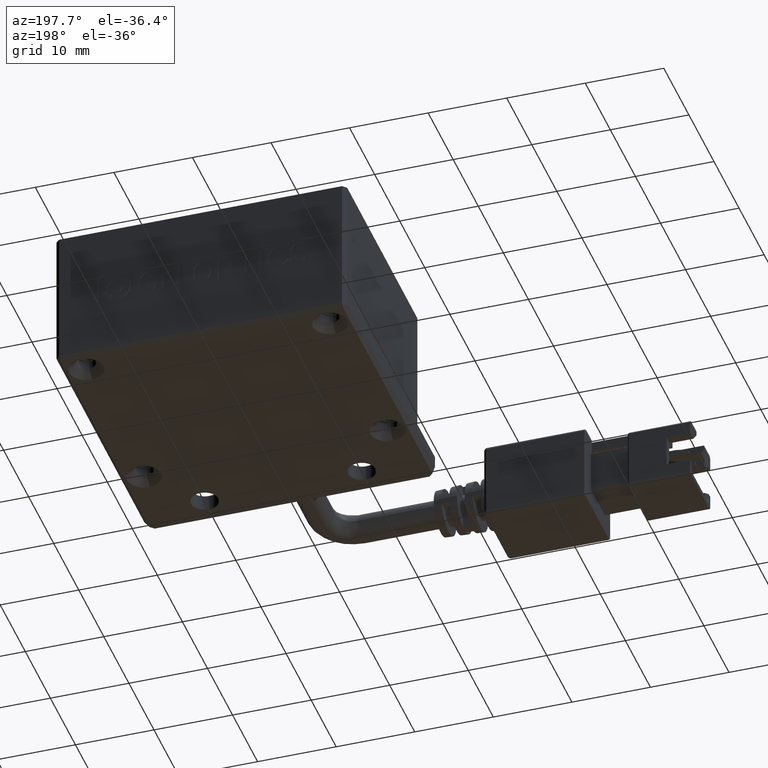
[diagram: clean part render]
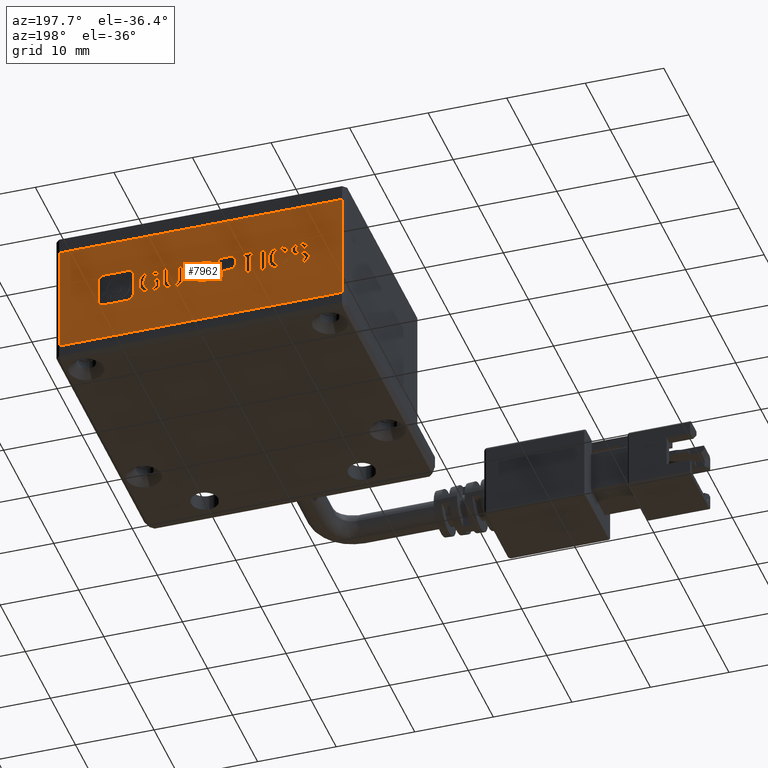
[diagram: same view with one face highlighted and labeled with its STEP entity id]
A machine part, auxiliary view. The second image highlights one B-rep face of the part: STEP entity #7962.
In plain terms, the highlighted planar face has unit normal (0, -1, 0).
Its self-contained STEP definition (entity closure, byte-faithful):
#54 = ORIENTED_EDGE ( 'NONE', *, *, #16119, .F. ) ;
#125 = VERTEX_POINT ( 'NONE', #10062 ) ;
#144 = DIRECTION ( 'NONE',  ( 1.000000000000000000, -0.0000000000000000000, -5.552676719606694400E-015 ) ) ;
#150 = DIRECTION ( 'NONE',  ( 7.322880387960603200E-015, -0.0000000000000000000, 1.000000000000000000 ) ) ;
#181 = VECTOR ( 'NONE', #12807, 1000.000000000000000 ) ;
#209 = LINE ( 'NONE', #10493, #3889 ) ;
#252 = CARTESIAN_POINT ( 'NONE',  ( -10.00140616549472000, 13.94635357006495000, 5.543769804141687600 ) ) ;
#275 = LINE ( 'NONE', #17168, #16345 ) ;
#327 = CARTESIAN_POINT ( 'NONE',  ( -8.760519199567319500, 13.94635357006495000, 7.064700036699803400 ) ) ;
#401 = CARTESIAN_POINT ( 'NONE',  ( -17.52940053455516500, 13.94635357006495000, 13.99999999998362900 ) ) ;
#438 = CARTESIAN_POINT ( 'NONE',  ( -7.146376419686406600, 13.94635357006495000, 5.599583757630047600 ) ) ;
#456 = CARTESIAN_POINT ( 'NONE',  ( -10.70013520822053700, 13.94635357006495000, 7.650746548327751000 ) ) ;
#481 = ORIENTED_EDGE ( 'NONE', *, *, #12413, .F. ) ;
#488 = EDGE_CURVE ( 'NONE', #7370, #8572, #5520, .T. ) ;
#500 = CARTESIAN_POINT ( 'NONE',  ( 12.69437896459454900, 13.94635357006495000, 9.395143773600935300 ) ) ;
#508 = EDGE_CURVE ( 'NONE', #11963, #7792, #5205, .T. ) ;
#518 = DIRECTION ( 'NONE',  ( 1.000000000000000000, -0.0000000000000000000, -1.134094831461895900E-014 ) ) ;
#543 = VECTOR ( 'NONE', #1288, 1000.000000000000000 ) ;
#608 = DIRECTION ( 'NONE',  ( -1.000000000000000000, -0.0000000000000000000, -0.0000000000000000000 ) ) ;
#665 = B_SPLINE_CURVE_WITH_KNOTS ( 'NONE', 3,
 ( #11896, #10332, #13176, #3863 ),
 .UNSPECIFIED., .F., .F.,
 ( 4, 4 ),
 ( 8.000000000000000000, 9.000000000000000000 ),
 .UNSPECIFIED. ) ;
#670 = VERTEX_POINT ( 'NONE', #9374 ) ;
#722 = CARTESIAN_POINT ( 'NONE',  ( 0.0000000000000000000, 13.94635357006495000, 5.543769804141618400 ) ) ;
#809 = LINE ( 'NONE', #4056, #4460 ) ;
#843 = ORIENTED_EDGE ( 'NONE', *, *, #12483, .F. ) ;
#869 = CARTESIAN_POINT ( 'NONE',  ( -11.01246619794504500, 13.94635357006495000, 6.101909339025400700 ) ) ;
#870 = EDGE_CURVE ( 'NONE', #2354, #7260, #5027, .T. ) ;
#902 = EDGE_CURVE ( 'NONE', #8963, #10932, #5466, .T. ) ;
#907 = VECTOR ( 'NONE', #10306, 1000.000000000000000 ) ;
#920 = CARTESIAN_POINT ( 'NONE',  ( 3.328069226609010400, 13.94635357006495000, 6.185630269257846000 ) ) ;
#929 = LINE ( 'NONE', #18829, #9188 ) ;
#933 = ORIENTED_EDGE ( 'NONE', *, *, #19654, .F. ) ;
#954 = LINE ( 'NONE', #15550, #5057 ) ;
#988 = CARTESIAN_POINT ( 'NONE',  ( 18.47059946544482000, 13.94635357006495000, 13.99999999998362900 ) ) ;
#1046 = B_SPLINE_CURVE_WITH_KNOTS ( 'NONE', 3,
 ( #13931, #6414, #17316, #7988 ),
 .UNSPECIFIED., .F., .F.,
 ( 4, 4 ),
 ( 2.000000000000000000, 3.000000000000000000 ),
 .UNSPECIFIED. ) ;
#1149 = VERTEX_POINT ( 'NONE', #5631 ) ;
#1181 = DIRECTION ( 'NONE',  ( -6.938893903907253600E-015, -0.0000000000000000000, -1.000000000000000000 ) ) ;
#1221 = CARTESIAN_POINT ( 'NONE',  ( 7.667036235803355000, 13.94635357006495000, 7.799448549409268200 ) ) ;
#1252 = VERTEX_POINT ( 'NONE', #5825 ) ;
#1275 = VECTOR ( 'NONE', #14734, 1000.000000000000000 ) ;
#1280 = CARTESIAN_POINT ( 'NONE',  ( 6.872985397512135100, 13.94635357006495000, 5.948420966932252100 ) ) ;
#1288 = DIRECTION ( 'NONE',  ( -1.000000000000000000, -0.0000000000000000000, 5.671226109854865700E-015 ) ) ;
#1342 = EDGE_CURVE ( 'NONE', #18429, #13712, #14613, .T. ) ;
#1344 = CARTESIAN_POINT ( 'NONE',  ( -8.769118442401284200, 13.94635357006495000, 7.808818479101090800 ) ) ;
#1365 = EDGE_CURVE ( 'NONE', #16979, #5921, #16159, .T. ) ;
#1369 = LINE ( 'NONE', #7833, #17426 ) ;
#1427 = EDGE_CURVE ( 'NONE', #9241, #11963, #17737, .T. ) ;
#1478 = CARTESIAN_POINT ( 'NONE',  ( 6.408869659275303800, 13.94635357006495000, 8.069351199490405700 ) ) ;
#1489 = CARTESIAN_POINT ( 'NONE',  ( -12.71771227690642700, 13.94635357006495000, 6.394932594839382000 ) ) ;
#1491 = CARTESIAN_POINT ( 'NONE',  ( -3.688101676581893700, 13.94635357006495000, 6.627355526153539100 ) ) ;
#1518 = VECTOR ( 'NONE', #16797, 1000.000000000000000 ) ;
#1528 = LINE ( 'NONE', #5782, #13489 ) ;
#1545 = CARTESIAN_POINT ( 'NONE',  ( -10.08829096809087000, 13.94635357006495000, 7.650746548327743900 ) ) ;
#1602 = VERTEX_POINT ( 'NONE', #5337 ) ;
#1613 = CARTESIAN_POINT ( 'NONE',  ( 3.996214169821549000, 13.94635357006495000, 5.543769804141583700 ) ) ;
#1618 = VERTEX_POINT ( 'NONE', #5553 ) ;
#1624 = LINE ( 'NONE', #13818, #17685 ) ;
#1641 = VERTEX_POINT ( 'NONE', #7121 ) ;
#1665 = EDGE_CURVE ( 'NONE', #7792, #1641, #665, .T. ) ;
#1670 = CARTESIAN_POINT ( 'NONE',  ( -11.38547863710097700, 13.94635357006495000, 6.994932594839371000 ) ) ;
#1674 = EDGE_CURVE ( 'NONE', #15351, #2670, #2214, .T. ) ;
#1683 = B_SPLINE_CURVE_WITH_KNOTS ( 'NONE', 3,
 ( #4697, #14008, #7810, #18676 ),
 .UNSPECIFIED., .F., .F.,
 ( 4, 4 ),
 ( 3.000000000000000000, 4.000000000000000000 ),
 .UNSPECIFIED. ) ;
#1800 = CARTESIAN_POINT ( 'NONE',  ( -10.63499188750682500, 13.94635357006495000, 6.046095385537020300 ) ) ;
#1801 = CARTESIAN_POINT ( 'NONE',  ( -2.993915630070211000, 13.94635357006495000, 8.599583757630007600 ) ) ;
#1816 = LINE ( 'NONE', #17707, #10106 ) ;
#1854 = ORIENTED_EDGE ( 'NONE', *, *, #14657, .F. ) ;
#1865 = LINE ( 'NONE', #3818, #17953 ) ;
#1968 = VECTOR ( 'NONE', #19541, 1000.000000000000000 ) ;
#1985 = EDGE_CURVE ( 'NONE', #18690, #1602, #8474, .T. ) ;
#1994 = DIRECTION ( 'NONE',  ( 1.000000000000000000, -0.0000000000000000000, -5.732035396651455800E-015 ) ) ;
#1997 = CARTESIAN_POINT ( 'NONE',  ( 7.068253109788937400, 13.94635357006495000, 7.329816315769482700 ) ) ;
#2041 = LINE ( 'NONE', #5745, #9840 ) ;
#2057 = VERTEX_POINT ( 'NONE', #9230 ) ;
#2064 = EDGE_CURVE ( 'NONE', #670, #11563, #10047, .T. ) ;
#2112 = LINE ( 'NONE', #14707, #9916 ) ;
#2182 = EDGE_CURVE ( 'NONE', #18968, #5576, #11613, .T. ) ;
#2187 = EDGE_CURVE ( 'NONE', #11563, #4280, #3671, .T. ) ;
#2214 = B_SPLINE_CURVE_WITH_KNOTS ( 'NONE', 3,
 ( #16302, #2278, #14745, #6971 ),
 .UNSPECIFIED., .F., .F.,
 ( 4, 4 ),
 ( 12.00000000000000000, 13.00000000000000000 ),
 .UNSPECIFIED. ) ;
#2230 = EDGE_LOOP ( 'NONE', ( #7232, #15999, #481, #5543 ) ) ;
#2258 = CARTESIAN_POINT ( 'NONE',  ( -9.489507842076804400, 13.94635357006495000, 5.543769804141684100 ) ) ;
#2278 = CARTESIAN_POINT ( 'NONE',  ( -12.98234180638191400, 13.94635357006495000, 5.543769804141708900 ) ) ;
#2354 = VERTEX_POINT ( 'NONE', #19551 ) ;
#2358 = B_SPLINE_CURVE_WITH_KNOTS ( 'NONE', 3,
 ( #6467, #15795, #14232, #17362 ),
 .UNSPECIFIED., .F., .F.,
 ( 4, 4 ),
 ( 3.000000000000000000, 4.000000000000000000 ),
 .UNSPECIFIED. ) ;
#2371 = CARTESIAN_POINT ( 'NONE',  ( 5.245862628447903300, 13.94635357006495000, 6.869351199490426800 ) ) ;
#2413 = CARTESIAN_POINT ( 'NONE',  ( -13.35559762033510700, 13.94635357006495000, 6.436793059955658000 ) ) ;
#2417 = VECTOR ( 'NONE', #10121, 1000.000000000000000 ) ;
#2444 = CARTESIAN_POINT ( 'NONE',  ( -13.27747431043800200, 13.94635357006495000, 7.706560501816120700 ) ) ;
#2451 = EDGE_CURVE ( 'NONE', #19105, #14473, #16311, .T. ) ;
#2473 = CARTESIAN_POINT ( 'NONE',  ( 3.983234180638182100, 13.94635357006495000, 5.948420966932266300 ) ) ;
#2542 = CARTESIAN_POINT ( 'NONE',  ( -11.33347755543539700, 13.94635357006495000, 6.176260339566246300 ) ) ;
#2559 = CARTESIAN_POINT ( 'NONE',  ( 2.677203893996626100, 13.94635357006495000, 5.948420966932280500 ) ) ;
#2569 = EDGE_CURVE ( 'NONE', #11564, #4171, #17869, .T. ) ;
#2572 = ORIENTED_EDGE ( 'NONE', *, *, #10536, .F. ) ;
#2602 = B_SPLINE_CURVE_WITH_KNOTS ( 'NONE', 3,
 ( #500, #9801, #12929, #3618 ),
 .UNSPECIFIED., .F., .F.,
 ( 4, 4 ),
 ( 1.000000000000000000, 2.000000000000000000 ),
 .UNSPECIFIED. ) ;
#2620 = VECTOR ( 'NONE', #15929, 1000.000000000000000 ) ;
#2670 = VERTEX_POINT ( 'NONE', #2413 ) ;
#2671 = CARTESIAN_POINT ( 'NONE',  ( 6.235181179015675000, 13.94635357006495000, 5.543769804141569500 ) ) ;
#2682 = CARTESIAN_POINT ( 'NONE',  ( 9.313375260586648000, 13.94635357006495000, 9.395143773600938900 ) ) ;
#2777 = LINE ( 'NONE', #7947, #14704 ) ;
#2851 = ORIENTED_EDGE ( 'NONE', *, *, #2569, .F. ) ;
#2864 = B_SPLINE_CURVE_WITH_KNOTS ( 'NONE', 3,
 ( #6049, #15389, #9183, #20057 ),
 .UNSPECIFIED., .F., .F.,
 ( 4, 4 ),
 ( 2.000000000000000000, 3.000000000000000000 ),
 .UNSPECIFIED. ) ;
#2917 = CARTESIAN_POINT ( 'NONE',  ( 6.925067604110401100, 13.94635357006495000, 8.641444222746208900 ) ) ;
#2920 = ORIENTED_EDGE ( 'NONE', *, *, #2064, .F. ) ;
#2954 = CARTESIAN_POINT ( 'NONE',  ( 7.818983234180641300, 13.94635357006495000, 8.594797386618580500 ) ) ;
#2993 = EDGE_CURVE ( 'NONE', #5921, #12721, #929, .T. ) ;
#3018 = EDGE_CURVE ( 'NONE', #4310, #18683, #2358, .T. ) ;
#3051 = CARTESIAN_POINT ( 'NONE',  ( -9.502487831259932300, 13.94635357006495000, 8.208886083211439200 ) ) ;
#3083 = EDGE_CURVE ( 'NONE', #9687, #2057, #3115, .T. ) ;
#3115 = LINE ( 'NONE', #9597, #2620 ) ;
#3119 = ORIENTED_EDGE ( 'NONE', *, *, #12243, .F. ) ;
#3173 = CARTESIAN_POINT ( 'NONE',  ( 3.345348837209404000, 13.94635357006495000, 6.715862827397414100 ) ) ;
#3189 = LINE ( 'NONE', #14796, #11444 ) ;
#3254 = B_SPLINE_CURVE_WITH_KNOTS ( 'NONE', 3,
 ( #7679, #12317, #10799, #1489 ),
 .UNSPECIFIED., .F., .F.,
 ( 4, 4 ),
 ( 3.000000000000000000, 4.000000000000000000 ),
 .UNSPECIFIED. ) ;
#3274 = CARTESIAN_POINT ( 'NONE',  ( 1.392833964304906800, 13.94635357006495000, 7.078653525071819900 ) ) ;
#3285 = FACE_BOUND ( 'NONE', #18891, .T. ) ;
#3337 = EDGE_CURVE ( 'NONE', #14301, #9783, #2112, .T. ) ;
#3364 = EDGE_CURVE ( 'NONE', #4280, #19105, #9772, .T. ) ;
#3373 = CARTESIAN_POINT ( 'NONE',  ( 8.317901568415401000, 13.94635357006495000, 7.106560501815975400 ) ) ;
#3394 = EDGE_CURVE ( 'NONE', #2670, #9241, #10814, .T. ) ;
#3454 = CARTESIAN_POINT ( 'NONE',  ( -11.45508382909680400, 13.94635357006495000, 8.632074293054602200 ) ) ;
#3541 = EDGE_CURVE ( 'NONE', #13712, #16979, #1624, .T. ) ;
#3561 = CARTESIAN_POINT ( 'NONE',  ( -10.63499188750682500, 13.94635357006495000, 6.046095385537020300 ) ) ;
#3564 = VERTEX_POINT ( 'NONE', #9107 ) ;
#3578 = DIRECTION ( 'NONE',  ( -1.000000000000000000, -0.0000000000000000000, 1.134094831461793000E-014 ) ) ;
#3618 = CARTESIAN_POINT ( 'NONE',  ( 13.51012564305944400, 13.94635357006495000, 8.416311338151253100 ) ) ;
#3671 = LINE ( 'NONE', #456, #19722 ) ;
#3694 = CARTESIAN_POINT ( 'NONE',  ( 3.345348837209404000, 13.94635357006495000, 8.599583757629963200 ) ) ;
#3730 = CARTESIAN_POINT ( 'NONE',  ( -0.8851541373714457700, 13.94635357006495000, 5.599583757630005800 ) ) ;
#3764 = ORIENTED_EDGE ( 'NONE', *, *, #19983, .F. ) ;
#3818 = CARTESIAN_POINT ( 'NONE',  ( 7.068253109788935600, 13.94635357006495000, 6.911211664606669000 ) ) ;
#3839 = ORIENTED_EDGE ( 'NONE', *, *, #7126, .F. ) ;
#3848 = EDGE_CURVE ( 'NONE', #8572, #8930, #6454, .T. ) ;
#3855 = ORIENTED_EDGE ( 'NONE', *, *, #18951, .F. ) ;
#3863 = CARTESIAN_POINT ( 'NONE',  ( -12.67869118442409300, 13.94635357006495000, 7.706560501816117200 ) ) ;
#3889 = VECTOR ( 'NONE', #1181, 1000.000000000000000 ) ;
#3896 = DIRECTION ( 'NONE',  ( -1.000000000000000000, -0.0000000000000000000, 8.329285440534002200E-015 ) ) ;
#4051 = CARTESIAN_POINT ( 'NONE',  ( -13.35559762033510400, 13.94635357006495000, 6.911211664606811100 ) ) ;
#4056 = CARTESIAN_POINT ( 'NONE',  ( -5.232882639264580000, 13.94635357006495000, 5.599583757630036900 ) ) ;
#4096 = ORIENTED_EDGE ( 'NONE', *, *, #18160, .F. ) ;
#4124 = CARTESIAN_POINT ( 'NONE',  ( -13.35559762033510700, 13.94635357006495000, 6.436793059955658000 ) ) ;
#4148 = VERTEX_POINT ( 'NONE', #12497 ) ;
#4171 = VERTEX_POINT ( 'NONE', #1613 ) ;
#4183 = CARTESIAN_POINT ( 'NONE',  ( -10.63499188750682100, 13.94635357006495000, 6.618188408792840400 ) ) ;
#4185 = LINE ( 'NONE', #14231, #16064 ) ;
#4187 = VERTEX_POINT ( 'NONE', #4758 ) ;
#4206 = VERTEX_POINT ( 'NONE', #14256 ) ;
#4209 = CARTESIAN_POINT ( 'NONE',  ( -12.21003244997293000, 13.94635357006495000, 5.543769804141701800 ) ) ;
#4241 = DIRECTION ( 'NONE',  ( 8.288123274111223200E-015, -0.0000000000000000000, 1.000000000000000000 ) ) ;
#4280 = VERTEX_POINT ( 'NONE', #6490 ) ;
#4310 = VERTEX_POINT ( 'NONE', #5188 ) ;
#4341 = CARTESIAN_POINT ( 'NONE',  ( -8.612871822606706500, 13.94635357006495000, 8.585630269257942300 ) ) ;
#4425 = CARTESIAN_POINT ( 'NONE',  ( -8.760519199567319500, 13.94635357006495000, 7.064700036699803400 ) ) ;
#4439 = B_SPLINE_CURVE_WITH_KNOTS ( 'NONE', 3,
 ( #3274, #12579, #4840, #15702 ),
 .UNSPECIFIED., .F., .F.,
 ( 4, 4 ),
 ( 1.000000000000000000, 2.000000000000000000 ),
 .UNSPECIFIED. ) ;
#4443 = CARTESIAN_POINT ( 'NONE',  ( -8.760519199567319500, 13.94635357006495000, 7.064700036699803400 ) ) ;
#4444 = ORIENTED_EDGE ( 'NONE', *, *, #3364, .F. ) ;
#4460 = VECTOR ( 'NONE', #14928, 1000.000000000000000 ) ;
#4513 = ORIENTED_EDGE ( 'NONE', *, *, #8417, .F. ) ;
#4683 = DIRECTION ( 'NONE',  ( 6.064480444471699300E-015, -0.0000000000000000000, 1.000000000000000000 ) ) ;
#4697 = CARTESIAN_POINT ( 'NONE',  ( -1.392833964304995600, 13.94635357006495000, 7.078653525071837600 ) ) ;
#4700 = B_SPLINE_CURVE_WITH_KNOTS ( 'NONE', 3,
 ( #18858, #252, #11124, #1800 ),
 .UNSPECIFIED., .F., .F.,
 ( 4, 4 ),
 ( 6.000000000000000000, 7.000000000000000000 ),
 .UNSPECIFIED. ) ;
#4724 = CARTESIAN_POINT ( 'NONE',  ( 5.662439156300840700, 13.94635357006495000, 7.762374455304359000 ) ) ;
#4758 = CARTESIAN_POINT ( 'NONE',  ( 5.245862628447915700, 13.94635357006495000, 8.599583757629949000 ) ) ;
#4806 = ORIENTED_EDGE ( 'NONE', *, *, #3394, .F. ) ;
#4840 = CARTESIAN_POINT ( 'NONE',  ( 0.8851541373715585700, 13.94635357006495000, 5.599583757629991600 ) ) ;
#4859 = CARTESIAN_POINT ( 'NONE',  ( 7.805922120065041300, 13.94635357006495000, 5.581046710577478400 ) ) ;
#4907 = EDGE_CURVE ( 'NONE', #19604, #2354, #1816, .T. ) ;
#4913 = DIRECTION ( 'NONE',  ( 1.000000000000000000, 0.0000000000000000000, 0.0000000000000000000 ) ) ;
#4947 = CARTESIAN_POINT ( 'NONE',  ( -8.122714981070634700, 13.94635357006495000, 7.092607013443990000 ) ) ;
#5027 = LINE ( 'NONE', #1997, #9596 ) ;
#5057 = VECTOR ( 'NONE', #4683, 1000.000000000000000 ) ;
#5132 = ORIENTED_EDGE ( 'NONE', *, *, #17310, .F. ) ;
#5170 = ORIENTED_EDGE ( 'NONE', *, *, #11712, .F. ) ;
#5188 = CARTESIAN_POINT ( 'NONE',  ( 3.983234180638182100, 13.94635357006495000, 5.948420966932266300 ) ) ;
#5205 = B_SPLINE_CURVE_WITH_KNOTS ( 'NONE', 3,
 ( #18004, #7117, #14886, #8674 ),
 .UNSPECIFIED., .F., .F.,
 ( 4, 4 ),
 ( 9.000000000000000000, 10.00000000000000000 ),
 .UNSPECIFIED. ) ;
#5231 = EDGE_CURVE ( 'NONE', #1602, #19444, #9380, .T. ) ;
#5295 = LINE ( 'NONE', #17569, #181 ) ;
#5337 = CARTESIAN_POINT ( 'NONE',  ( -9.632693347755568100, 13.94635357006495000, 5.948420966932370200 ) ) ;
#5364 = VERTEX_POINT ( 'NONE', #7883 ) ;
#5431 = EDGE_LOOP ( 'NONE', ( #5732, #10867, #10915, #15504 ) ) ;
#5456 = DIRECTION ( 'NONE',  ( 6.938893903907253600E-015, -0.0000000000000000000, 1.000000000000000000 ) ) ;
#5462 = CARTESIAN_POINT ( 'NONE',  ( 5.853407247160676600, 13.94635357006495000, 8.348420966932272000 ) ) ;
#5466 = LINE ( 'NONE', #9822, #13278 ) ;
#5517 = CARTESIAN_POINT ( 'NONE',  ( -10.56116819902650900, 13.94635357006495000, 8.301774130804735900 ) ) ;
#5520 = LINE ( 'NONE', #988, #907 ) ;
#5543 = ORIENTED_EDGE ( 'NONE', *, *, #16459, .F. ) ;
#5553 = CARTESIAN_POINT ( 'NONE',  ( -12.71771227690642700, 13.94635357006495000, 6.394932594839382000 ) ) ;
#5570 = EDGE_CURVE ( 'NONE', #4187, #11564, #7136, .T. ) ;
#5576 = VERTEX_POINT ( 'NONE', #14841 ) ;
#5589 = B_SPLINE_CURVE_WITH_KNOTS ( 'NONE', 3,
 ( #16684, #2671, #13576, #7366 ),
 .UNSPECIFIED., .F., .F.,
 ( 4, 4 ),
 ( 10.00000000000000000, 11.00000000000000000 ),
 .UNSPECIFIED. ) ;
#5600 = EDGE_CURVE ( 'NONE', #11244, #6466, #11488, .T. ) ;
#5618 = CARTESIAN_POINT ( 'NONE',  ( 3.102541914548289100, 13.94635357006495000, 5.497325780344935400 ) ) ;
#5630 = CARTESIAN_POINT ( 'NONE',  ( -5.857706868577450300, 13.94635357006495000, 5.599583757630040500 ) ) ;
#5631 = CARTESIAN_POINT ( 'NONE',  ( -4.009275283937338200, 13.94635357006495000, 7.622839571583502200 ) ) ;
#5732 = ORIENTED_EDGE ( 'NONE', *, *, #5804, .F. ) ;
#5745 = CARTESIAN_POINT ( 'NONE',  ( -2.993915630070224800, 13.94635357006495000, 6.646095385536961300 ) ) ;
#5781 = ORIENTED_EDGE ( 'NONE', *, *, #16022, .F. ) ;
#5782 = CARTESIAN_POINT ( 'NONE',  ( -6.781882098431537100, 13.94635357006495000, 8.599583757630032500 ) ) ;
#5783 = ORIENTED_EDGE ( 'NONE', *, *, #2451, .F. ) ;
#5804 = EDGE_CURVE ( 'NONE', #8930, #12516, #7825, .T. ) ;
#5825 = CARTESIAN_POINT ( 'NONE',  ( 6.235181179015676800, 13.94635357006495000, 6.408886083211356800 ) ) ;
#5878 = CARTESIAN_POINT ( 'NONE',  ( -9.463466738777604800, 13.94635357006495000, 8.641444222746322600 ) ) ;
#5895 = CARTESIAN_POINT ( 'NONE',  ( 7.693077339102527100, 13.94635357006495000, 7.092607013443879000 ) ) ;
#5921 = VERTEX_POINT ( 'NONE', #11476 ) ;
#5951 = ORIENTED_EDGE ( 'NONE', *, *, #18776, .F. ) ;
#5969 = VECTOR ( 'NONE', #608, 1000.000000000000000 ) ;
#6016 = CARTESIAN_POINT ( 'NONE',  ( 13.23284728107531500, 13.94635357006495000, 4.921033373252635500 ) ) ;
#6018 = CARTESIAN_POINT ( 'NONE',  ( -1.783369388858791400, 13.94635357006495000, 8.599583757630000500 ) ) ;
#6033 = CARTESIAN_POINT ( 'NONE',  ( -9.016387236343883100, 13.94635357006495000, 8.190146223827978700 ) ) ;
#6044 = DIRECTION ( 'NONE',  ( -1.000000000000000000, -0.0000000000000000000, 7.322880572951312700E-015 ) ) ;
#6046 = ORIENTED_EDGE ( 'NONE', *, *, #17663, .F. ) ;
#6049 = CARTESIAN_POINT ( 'NONE',  ( 2.168404344971008900E-014, 13.94635357006495000, 8.641444222746256900 ) ) ;
#6077 = CARTESIAN_POINT ( 'NONE',  ( 8.283342347214745200, 13.94635357006495000, 8.083304687862488800 ) ) ;
#6110 = CARTESIAN_POINT ( 'NONE',  ( -8.166035694970316800, 13.94635357006495000, 6.106492897705751800 ) ) ;
#6134 = EDGE_CURVE ( 'NONE', #19444, #670, #18749, .T. ) ;
#6179 = CARTESIAN_POINT ( 'NONE',  ( -4.009275283937338200, 13.94635357006495000, 7.622839571583502200 ) ) ;
#6228 = CARTESIAN_POINT ( 'NONE',  ( 7.693077339102527100, 13.94635357006495000, 7.092607013443879000 ) ) ;
#6243 = B_SPLINE_CURVE_WITH_KNOTS ( 'NONE', 3,
 ( #12381, #1491, #15505, #6179 ),
 .UNSPECIFIED., .F., .F.,
 ( 4, 4 ),
 ( 6.000000000000000000, 7.000000000000000000 ),
 .UNSPECIFIED. ) ;
#6272 = DIRECTION ( 'NONE',  ( -6.938893903907253600E-015, -0.0000000000000000000, -1.000000000000000000 ) ) ;
#6279 = CARTESIAN_POINT ( 'NONE',  ( 12.69437896459454900, 13.94635357006495000, 9.395143773600914000 ) ) ;
#6336 = ORIENTED_EDGE ( 'NONE', *, *, #7068, .F. ) ;
#6378 = B_SPLINE_CURVE_WITH_KNOTS ( 'NONE', 3,
 ( #8652, #920, #11799, #2473 ),
 .UNSPECIFIED., .F., .F.,
 ( 4, 4 ),
 ( 4.000000000000000000, 5.000000000000000000 ),
 .UNSPECIFIED. ) ;
#6414 = CARTESIAN_POINT ( 'NONE',  ( -12.70895078420780200, 13.94635357006495000, 6.087955850653317600 ) ) ;
#6435 = ORIENTED_EDGE ( 'NONE', *, *, #15562, .F. ) ;
#6454 = LINE ( 'NONE', #14549, #5969 ) ;
#6460 = ORIENTED_EDGE ( 'NONE', *, *, #5600, .F. ) ;
#6466 = VERTEX_POINT ( 'NONE', #5630 ) ;
#6467 = CARTESIAN_POINT ( 'NONE',  ( 3.983234180638182100, 13.94635357006495000, 5.948420966932266300 ) ) ;
#6480 = CARTESIAN_POINT ( 'NONE',  ( 4.621038399134713300, 13.94635357006495000, 8.599583757629952500 ) ) ;
#6490 = CARTESIAN_POINT ( 'NONE',  ( -10.70013520822053700, 13.94635357006495000, 7.650746548327751000 ) ) ;
#6497 = CARTESIAN_POINT ( 'NONE',  ( -5.857706868577432500, 13.94635357006495000, 8.180979106467228600 ) ) ;
#6519 = DIRECTION ( 'NONE',  ( -1.000000000000000000, -0.0000000000000000000, 1.134094831461895900E-014 ) ) ;
#6524 = VECTOR ( 'NONE', #9222, 1000.000000000000000 ) ;
#6566 = CARTESIAN_POINT ( 'NONE',  ( -4.009275283937338200, 13.94635357006495000, 7.622839571583502200 ) ) ;
#6569 = CARTESIAN_POINT ( 'NONE',  ( -11.07760951865875400, 13.94635357006495000, 7.818188408792843300 ) ) ;
#6571 = CARTESIAN_POINT ( 'NONE',  ( -18.02940053455517200, 13.94635357006495000, 13.99999999998362900 ) ) ;
#6590 = ORIENTED_EDGE ( 'NONE', *, *, #2187, .F. ) ;
#6615 = VECTOR ( 'NONE', #13268, 1000.000000000000000 ) ;
#6693 = CARTESIAN_POINT ( 'NONE',  ( 5.245862628447903300, 13.94635357006495000, 6.869351199490426800 ) ) ;
#6694 = DIRECTION ( 'NONE',  ( 1.000000000000000000, -0.0000000000000000000, -4.890419221775218300E-015 ) ) ;
#6796 = ORIENTED_EDGE ( 'NONE', *, *, #19185, .F. ) ;
#6923 = FACE_OUTER_BOUND ( 'NONE', #5431, .T. ) ;
#6958 = CARTESIAN_POINT ( 'NONE',  ( 3.345348837209404000, 13.94635357006495000, 8.599583757629963200 ) ) ;
#6971 = CARTESIAN_POINT ( 'NONE',  ( -13.35559762033510700, 13.94635357006495000, 6.436793059955658000 ) ) ;
#6981 = VERTEX_POINT ( 'NONE', #3694 ) ;
#7031 = EDGE_CURVE ( 'NONE', #7886, #8963, #3189, .T. ) ;
#7062 = CARTESIAN_POINT ( 'NONE',  ( -5.857706868577432500, 13.94635357006495000, 8.180979106467228600 ) ) ;
#7068 = EDGE_CURVE ( 'NONE', #9125, #4310, #6378, .T. ) ;
#7117 = CARTESIAN_POINT ( 'NONE',  ( -11.70665224445642100, 13.94635357006495000, 8.078518316851246400 ) ) ;
#7121 = CARTESIAN_POINT ( 'NONE',  ( -12.67869118442409300, 13.94635357006495000, 7.706560501816117200 ) ) ;
#7125 = CARTESIAN_POINT ( 'NONE',  ( -11.70665224445643900, 13.94635357006495000, 5.515862827397508100 ) ) ;
#7126 = EDGE_CURVE ( 'NONE', #12061, #9687, #7944, .T. ) ;
#7136 = LINE ( 'NONE', #2371, #6615 ) ;
#7146 = CARTESIAN_POINT ( 'NONE',  ( -12.13199026500797300, 13.94635357006495000, 8.641444222746340400 ) ) ;
#7169 = VECTOR ( 'NONE', #7979, 1000.000000000000000 ) ;
#7180 = ORIENTED_EDGE ( 'NONE', *, *, #13382, .F. ) ;
#7207 = ORIENTED_EDGE ( 'NONE', *, *, #5231, .F. ) ;
#7209 = CARTESIAN_POINT ( 'NONE',  ( 2.168404344971008900E-014, 13.94635357006495000, 8.641444222746256900 ) ) ;
#7216 = LINE ( 'NONE', #9041, #16939 ) ;
#7230 = CARTESIAN_POINT ( 'NONE',  ( -12.21003244997291600, 13.94635357006495000, 7.385630269257960700 ) ) ;
#7232 = ORIENTED_EDGE ( 'NONE', *, *, #902, .F. ) ;
#7243 = ORIENTED_EDGE ( 'NONE', *, *, #5570, .F. ) ;
#7257 = CARTESIAN_POINT ( 'NONE',  ( -6.781882098431539800, 13.94635357006495000, 8.180979106467232100 ) ) ;
#7260 = VERTEX_POINT ( 'NONE', #12336 ) ;
#7366 = CARTESIAN_POINT ( 'NONE',  ( 5.649378042185132300, 13.94635357006495000, 6.213537246002043300 ) ) ;
#7370 = VERTEX_POINT ( 'NONE', #7951 ) ;
#7384 = ORIENTED_EDGE ( 'NONE', *, *, #18852, .F. ) ;
#7393 = CARTESIAN_POINT ( 'NONE',  ( -8.166035694970302600, 13.94635357006495000, 8.069351199490503400 ) ) ;
#7437 = FACE_BOUND ( 'NONE', #8978, .T. ) ;
#7463 = CARTESIAN_POINT ( 'NONE',  ( -7.758220659815997100, 13.94635357006495000, 8.599583757630043100 ) ) ;
#7477 = CARTESIAN_POINT ( 'NONE',  ( 7.411168199026450400, 13.94635357006495000, 8.176192735455796200 ) ) ;
#7522 = VERTEX_POINT ( 'NONE', #11279 ) ;
#7529 = ORIENTED_EDGE ( 'NONE', *, *, #15047, .F. ) ;
#7556 = LINE ( 'NONE', #14574, #18944 ) ;
#7614 = LINE ( 'NONE', #18974, #15882 ) ;
#7679 = CARTESIAN_POINT ( 'NONE',  ( -12.18407247160623400, 13.94635357006495000, 6.855397711118447600 ) ) ;
#7702 = VERTEX_POINT ( 'NONE', #8631 ) ;
#7716 = CARTESIAN_POINT ( 'NONE',  ( -5.232882639264559500, 13.94635357006495000, 8.180979106467221500 ) ) ;
#7765 = VECTOR ( 'NONE', #10967, 1000.000000000000000 ) ;
#7792 = VERTEX_POINT ( 'NONE', #15379 ) ;
#7805 = ORIENTED_EDGE ( 'NONE', *, *, #18778, .F. ) ;
#7810 = CARTESIAN_POINT ( 'NONE',  ( -0.8677122769063300200, 13.94635357006495000, 8.585630269257890700 ) ) ;
#7812 = B_SPLINE_CURVE_WITH_KNOTS ( 'NONE', 3,
 ( #16998, #6110, #9239, #20111 ),
 .UNSPECIFIED., .F., .F.,
 ( 4, 4 ),
 ( 7.000000000000000000, 8.000000000000000000 ),
 .UNSPECIFIED. ) ;
#7825 = LINE ( 'NONE', #401, #11993 ) ;
#7832 = EDGE_LOOP ( 'NONE', ( #18666, #6796, #15523, #3839, #13948, #5132, #17509, #18516, #17173, #5951, #10581, #18447, #11586, #4806 ) ) ;
#7833 = CARTESIAN_POINT ( 'NONE',  ( 5.245862628447915700, 13.94635357006495000, 8.599583757629949000 ) ) ;
#7883 = CARTESIAN_POINT ( 'NONE',  ( 6.872985397512135100, 13.94635357006495000, 5.948420966932252100 ) ) ;
#7886 = VERTEX_POINT ( 'NONE', #13949 ) ;
#7895 = FACE_BOUND ( 'NONE', #17462, .T. ) ;
#7902 = ORIENTED_EDGE ( 'NONE', *, *, #3337, .F. ) ;
#7927 = CARTESIAN_POINT ( 'NONE',  ( 9.036015355736736900, 13.94635357006495000, 5.198352513675379400 ) ) ;
#7929 = B_SPLINE_CURVE_WITH_KNOTS ( 'NONE', 3,
 ( #869, #14897, #7125, #18015 ),
 .UNSPECIFIED., .F., .F.,
 ( 4, 4 ),
 ( 13.00000000000000000, 14.00000000000000000 ),
 .UNSPECIFIED. ) ;
#7944 = B_SPLINE_CURVE_WITH_KNOTS ( 'NONE', 3,
 ( #16490, #11879, #2542, #13457 ),
 .UNSPECIFIED., .F., .F.,
 ( 4, 4 ),
 ( 1.000000000000000000, 2.000000000000000000 ),
 .UNSPECIFIED. ) ;
#7947 = CARTESIAN_POINT ( 'NONE',  ( -7.758220659816017500, 13.94635357006495000, 5.599583757630053800 ) ) ;
#7951 = CARTESIAN_POINT ( 'NONE',  ( 18.47059946544482000, 13.94635357006495400, -1.637318752800709400E-011 ) ) ;
#7954 = ORIENTED_EDGE ( 'NONE', *, *, #16133, .F. ) ;
#7962 = ADVANCED_FACE ( 'NONE', ( #15688, #7895, #19819, #11559, #7437, #3285, #19316, #15223, #11060, #6923 ), #14199, .F. ) ;
#7979 = DIRECTION ( 'NONE',  ( 6.906769395092889300E-015, -0.0000000000000000000, 1.000000000000000000 ) ) ;
#7988 = CARTESIAN_POINT ( 'NONE',  ( -12.11892915089240900, 13.94635357006495000, 5.934467478560287100 ) ) ;
#8121 = CARTESIAN_POINT ( 'NONE',  ( -11.69789075175773800, 13.94635357006495000, 7.585562665147642200 ) ) ;
#8123 = CARTESIAN_POINT ( 'NONE',  ( -4.017793401838589200, 13.94635357006495000, 8.273867154060511100 ) ) ;
#8125 = DIRECTION ( 'NONE',  ( 0.0000000000000000000, -0.0000000000000000000, -1.000000000000000000 ) ) ;
#8189 = CARTESIAN_POINT ( 'NONE',  ( -11.01676581936182600, 13.94635357006495000, 7.315862827397504400 ) ) ;
#8260 = CARTESIAN_POINT ( 'NONE',  ( -12.18407247160623400, 13.94635357006495000, 6.855397711118447600 ) ) ;
#8417 = EDGE_CURVE ( 'NONE', #13592, #14301, #1528, .T. ) ;
#8474 = B_SPLINE_CURVE_WITH_KNOTS ( 'NONE', 3,
 ( #10595, #13730, #18420, #9089 ),
 .UNSPECIFIED., .F., .F.,
 ( 4, 4 ),
 ( 4.000000000000000000, 5.000000000000000000 ),
 .UNSPECIFIED. ) ;
#8513 = ORIENTED_EDGE ( 'NONE', *, *, #17018, .F. ) ;
#8572 = VERTEX_POINT ( 'NONE', #17269 ) ;
#8586 = CARTESIAN_POINT ( 'NONE',  ( 6.925067604110401100, 13.94635357006495000, 8.641444222746208900 ) ) ;
#8607 = EDGE_CURVE ( 'NONE', #7702, #18968, #15776, .T. ) ;
#8621 = CARTESIAN_POINT ( 'NONE',  ( -13.17330989724178300, 13.94635357006495000, 8.311144060496495500 ) ) ;
#8631 = CARTESIAN_POINT ( 'NONE',  ( -12.13199026500797300, 13.94635357006495000, 8.641444222746340400 ) ) ;
#8633 = VERTEX_POINT ( 'NONE', #1801 ) ;
#8652 = CARTESIAN_POINT ( 'NONE',  ( 3.345348837209404000, 13.94635357006495000, 6.715862827397414100 ) ) ;
#8674 = CARTESIAN_POINT ( 'NONE',  ( -12.14497025419145800, 13.94635357006495000, 8.208886083211460500 ) ) ;
#8682 = CARTESIAN_POINT ( 'NONE',  ( 6.235181179015680400, 13.94635357006495000, 6.911211664606675200 ) ) ;
#8827 = LINE ( 'NONE', #19907, #543 ) ;
#8858 = B_SPLINE_CURVE_WITH_KNOTS ( 'NONE', 3,
 ( #13846, #2954, #6077, #16968 ),
 .UNSPECIFIED., .F., .F.,
 ( 4, 4 ),
 ( 12.00000000000000000, 13.00000000000000000 ),
 .UNSPECIFIED. ) ;
#8930 = VERTEX_POINT ( 'NONE', #12034 ) ;
#8952 = DIRECTION ( 'NONE',  ( -7.768682748710170000E-015, -0.0000000000000000000, -1.000000000000000000 ) ) ;
#8963 = VERTEX_POINT ( 'NONE', #7463 ) ;
#8978 = EDGE_LOOP ( 'NONE', ( #7902, #4513, #843, #933, #6460, #11616, #7529, #12587 ) ) ;
#8984 = ORIENTED_EDGE ( 'NONE', *, *, #3541, .F. ) ;
#9041 = CARTESIAN_POINT ( 'NONE',  ( 3.345348837209392000, 13.94635357006495000, 6.715862827397414100 ) ) ;
#9087 = CARTESIAN_POINT ( 'NONE',  ( -2.395132504056199700, 13.94635357006495000, 6.646095385536954200 ) ) ;
#9089 = CARTESIAN_POINT ( 'NONE',  ( -9.632693347755568100, 13.94635357006495000, 5.948420966932370200 ) ) ;
#9107 = CARTESIAN_POINT ( 'NONE',  ( 7.693077339102527100, 13.94635357006495000, 7.092607013443879000 ) ) ;
#9125 = VERTEX_POINT ( 'NONE', #3173 ) ;
#9131 = CARTESIAN_POINT ( 'NONE',  ( 5.245862628447903300, 13.94635357006495000, 6.869351199490426800 ) ) ;
#9175 = ORIENTED_EDGE ( 'NONE', *, *, #18969, .F. ) ;
#9181 = CARTESIAN_POINT ( 'NONE',  ( -5.857706868577450300, 13.94635357006495000, 5.599583757630040500 ) ) ;
#9183 = CARTESIAN_POINT ( 'NONE',  ( 1.349513250405683300, 13.94635357006495000, 8.083304687862533200 ) ) ;
#9188 = VECTOR ( 'NONE', #150, 1000.000000000000000 ) ;
#9222 = DIRECTION ( 'NONE',  ( 6.630498619289373800E-015, -0.0000000000000000000, 1.000000000000000000 ) ) ;
#9229 = CARTESIAN_POINT ( 'NONE',  ( 6.925067604110401100, 13.94635357006495000, 8.222839571583422800 ) ) ;
#9230 = CARTESIAN_POINT ( 'NONE',  ( -11.01246619794504500, 13.94635357006495000, 6.101909339025400700 ) ) ;
#9239 = CARTESIAN_POINT ( 'NONE',  ( -8.621633315305633300, 13.94635357006495000, 5.590416640269321400 ) ) ;
#9241 = VERTEX_POINT ( 'NONE', #12737 ) ;
#9374 = CARTESIAN_POINT ( 'NONE',  ( -9.502487831259932300, 13.94635357006495000, 8.208886083211439200 ) ) ;
#9380 = B_SPLINE_CURVE_WITH_KNOTS ( 'NONE', 3,
 ( #10616, #19921, #13752, #4443 ),
 .UNSPECIFIED., .F., .F.,
 ( 4, 4 ),
 ( 3.000000000000000000, 4.000000000000000000 ),
 .UNSPECIFIED. ) ;
#9395 = ORIENTED_EDGE ( 'NONE', *, *, #18839, .F. ) ;
#9499 = CARTESIAN_POINT ( 'NONE',  ( 9.851688645621866400, 13.94635357006495000, 4.921033373252646100 ) ) ;
#9588 = VERTEX_POINT ( 'NONE', #7716 ) ;
#9596 = VECTOR ( 'NONE', #6694, 1000.000000000000000 ) ;
#9597 = CARTESIAN_POINT ( 'NONE',  ( -11.01246619794504500, 13.94635357006495000, 6.101909339025400700 ) ) ;
#9628 = CARTESIAN_POINT ( 'NONE',  ( -11.86289886425105600, 13.94635357006495000, 7.441444222746341100 ) ) ;
#9684 = DIRECTION ( 'NONE',  ( -1.000000000000000000, -0.0000000000000000000, 7.508201561519323700E-015 ) ) ;
#9687 = VERTEX_POINT ( 'NONE', #14235 ) ;
#9696 = CARTESIAN_POINT ( 'NONE',  ( -2.993915630070211000, 13.94635357006495000, 8.599583757630007600 ) ) ;
#9708 = DIRECTION ( 'NONE',  ( 0.0000000000000000000, -0.0000000000000000000, -1.000000000000000000 ) ) ;
#9713 = DIRECTION ( 'NONE',  ( -1.000000000000000000, -0.0000000000000000000, 3.754100780759197200E-015 ) ) ;
#9749 = CARTESIAN_POINT ( 'NONE',  ( 9.851688645621886000, 13.94635357006495000, 9.395143773600935300 ) ) ;
#9772 = B_SPLINE_CURVE_WITH_KNOTS ( 'NONE', 3,
 ( #16408, #5517, #19520, #10226 ),
 .UNSPECIFIED., .F., .F.,
 ( 4, 4 ),
 ( 9.000000000000000000, 10.00000000000000000 ),
 .UNSPECIFIED. ) ;
#9783 = VERTEX_POINT ( 'NONE', #17559 ) ;
#9801 = CARTESIAN_POINT ( 'NONE',  ( 13.23284728107534900, 13.94635357006495000, 9.395143773600924700 ) ) ;
#9822 = CARTESIAN_POINT ( 'NONE',  ( -7.146376419686386100, 13.94635357006495000, 8.599583757630036000 ) ) ;
#9823 = ORIENTED_EDGE ( 'NONE', *, *, #14066, .F. ) ;
#9840 = VECTOR ( 'NONE', #16645, 1000.000000000000000 ) ;
#9887 = ORIENTED_EDGE ( 'NONE', *, *, #10647, .F. ) ;
#9916 = VECTOR ( 'NONE', #17835, 1000.000000000000000 ) ;
#9919 = EDGE_CURVE ( 'NONE', #9588, #11244, #809, .T. ) ;
#9987 = CARTESIAN_POINT ( 'NONE',  ( -1.392833964304995600, 13.94635357006495000, 7.078653525071837600 ) ) ;
#10005 = EDGE_CURVE ( 'NONE', #12970, #19604, #5589, .T. ) ;
#10006 = ORIENTED_EDGE ( 'NONE', *, *, #17725, .F. ) ;
#10047 = B_SPLINE_CURVE_WITH_KNOTS ( 'NONE', 3,
 ( #3051, #20163, #10857, #1545 ),
 .UNSPECIFIED., .F., .F.,
 ( 4, 4 ),
 ( 1.000000000000000000, 2.000000000000000000 ),
 .UNSPECIFIED. ) ;
#10062 = CARTESIAN_POINT ( 'NONE',  ( -13.27747431043800200, 13.94635357006495000, 7.706560501816120700 ) ) ;
#10106 = VECTOR ( 'NONE', #17563, 1000.000000000000000 ) ;
#10121 = DIRECTION ( 'NONE',  ( 6.720099951982279400E-015, -0.0000000000000000000, 1.000000000000000000 ) ) ;
#10226 = CARTESIAN_POINT ( 'NONE',  ( -9.463466738777604800, 13.94635357006495000, 8.641444222746322600 ) ) ;
#10258 = ORIENTED_EDGE ( 'NONE', *, *, #13570, .F. ) ;
#10306 = DIRECTION ( 'NONE',  ( -0.0000000000000000000, 0.0000000000000000000, 1.000000000000000000 ) ) ;
#10328 = CARTESIAN_POINT ( 'NONE',  ( 3.996214169821549000, 13.94635357006495000, 5.543769804141583700 ) ) ;
#10332 = CARTESIAN_POINT ( 'NONE',  ( -12.40530016224970000, 13.94635357006495000, 8.199516153519741800 ) ) ;
#10420 = ORIENTED_EDGE ( 'NONE', *, *, #19311, .F. ) ;
#10429 = VERTEX_POINT ( 'NONE', #7209 ) ;
#10493 = CARTESIAN_POINT ( 'NONE',  ( -7.146376419686406600, 13.94635357006495000, 5.599583757630047600 ) ) ;
#10520 = CARTESIAN_POINT ( 'NONE',  ( 13.51012564305942300, 13.94635357006495000, 5.736747455177930300 ) ) ;
#10536 = EDGE_CURVE ( 'NONE', #1252, #5364, #13449, .T. ) ;
#10569 = CARTESIAN_POINT ( 'NONE',  ( 12.69437896459451800, 13.94635357006495000, 4.921033373252636300 ) ) ;
#10581 = ORIENTED_EDGE ( 'NONE', *, *, #1665, .F. ) ;
#10594 = CARTESIAN_POINT ( 'NONE',  ( 6.543293672255260600, 13.94635357006495000, 5.939051037240552100 ) ) ;
#10595 = CARTESIAN_POINT ( 'NONE',  ( -10.63499188750682100, 13.94635357006495000, 6.618188408792840400 ) ) ;
#10596 = CARTESIAN_POINT ( 'NONE',  ( 9.036015355736747500, 13.94635357006495000, 8.579437845962711900 ) ) ;
#10601 = VERTEX_POINT ( 'NONE', #9087 ) ;
#10609 = DIRECTION ( 'NONE',  ( -6.446318102086684400E-015, -0.0000000000000000000, -1.000000000000000000 ) ) ;
#10616 = CARTESIAN_POINT ( 'NONE',  ( -9.632693347755568100, 13.94635357006495000, 5.948420966932370200 ) ) ;
#10647 = EDGE_CURVE ( 'NONE', #5364, #3564, #15002, .T. ) ;
#10673 = LINE ( 'NONE', #16978, #6524 ) ;
#10695 = CARTESIAN_POINT ( 'NONE',  ( 5.662439156300840700, 13.94635357006495000, 7.762374455304359000 ) ) ;
#10738 = LINE ( 'NONE', #13390, #1968 ) ;
#10796 = LINE ( 'NONE', #12915, #19030 ) ;
#10799 = CARTESIAN_POINT ( 'NONE',  ( -12.71771227690642700, 13.94635357006495000, 6.636725455845312800 ) ) ;
#10814 = B_SPLINE_CURVE_WITH_KNOTS ( 'NONE', 3,
 ( #4124, #4051, #16558, #7230 ),
 .UNSPECIFIED., .F., .F.,
 ( 4, 4 ),
 ( 11.00000000000000000, 12.00000000000000000 ),
 .UNSPECIFIED. ) ;
#10857 = CARTESIAN_POINT ( 'NONE',  ( -10.00140616549470200, 13.94635357006495000, 8.022704363362873200 ) ) ;
#10867 = ORIENTED_EDGE ( 'NONE', *, *, #3848, .F. ) ;
#10915 = ORIENTED_EDGE ( 'NONE', *, *, #488, .F. ) ;
#10932 = VERTEX_POINT ( 'NONE', #16382 ) ;
#10967 = DIRECTION ( 'NONE',  ( 1.000000000000000000, -0.0000000000000000000, -7.322880572951312700E-015 ) ) ;
#10986 = VECTOR ( 'NONE', #1994, 1000.000000000000000 ) ;
#11059 = CARTESIAN_POINT ( 'NONE',  ( 9.036015355736726200, 13.94635357006495000, 5.736747455177964900 ) ) ;
#11060 = FACE_BOUND ( 'NONE', #19308, .T. ) ;
#11124 = CARTESIAN_POINT ( 'NONE',  ( -10.38318009734984300, 13.94635357006495000, 5.711211664606801200 ) ) ;
#11159 = EDGE_CURVE ( 'NONE', #1618, #12061, #1046, .T. ) ;
#11165 = ORIENTED_EDGE ( 'NONE', *, *, #18623, .F. ) ;
#11191 = CARTESIAN_POINT ( 'NONE',  ( -12.21003244997291600, 13.94635357006495000, 7.385630269257960700 ) ) ;
#11216 = CARTESIAN_POINT ( 'NONE',  ( 13.51012564305942300, 13.94635357006495000, 5.736747455177930300 ) ) ;
#11244 = VERTEX_POINT ( 'NONE', #11380 ) ;
#11250 = CARTESIAN_POINT ( 'NONE',  ( -1.783369388858791400, 13.94635357006495000, 8.599583757630000500 ) ) ;
#11279 = CARTESIAN_POINT ( 'NONE',  ( -4.308707409410566000, 13.94635357006495000, 8.180979106467214400 ) ) ;
#11318 = CARTESIAN_POINT ( 'NONE',  ( 4.855327203893929200, 13.94635357006495000, 5.515862827397390000 ) ) ;
#11321 = ORIENTED_EDGE ( 'NONE', *, *, #18002, .F. ) ;
#11380 = CARTESIAN_POINT ( 'NONE',  ( -5.232882639264580000, 13.94635357006495000, 5.599583757630036900 ) ) ;
#11444 = VECTOR ( 'NONE', #5456, 1000.000000000000000 ) ;
#11476 = CARTESIAN_POINT ( 'NONE',  ( 9.036015355736726200, 13.94635357006495000, 5.736747455177964900 ) ) ;
#11488 = LINE ( 'NONE', #9181, #15163 ) ;
#11559 = FACE_BOUND ( 'NONE', #15248, .T. ) ;
#11563 = VERTEX_POINT ( 'NONE', #15341 ) ;
#11564 = VERTEX_POINT ( 'NONE', #9131 ) ;
#11586 = ORIENTED_EDGE ( 'NONE', *, *, #1427, .F. ) ;
#11613 = B_SPLINE_CURVE_WITH_KNOTS ( 'NONE', 3,
 ( #17589, #8189, #1670, #8260 ),
 .UNSPECIFIED., .F., .F.,
 ( 4, 4 ),
 ( 4.000000000000000000, 5.000000000000000000 ),
 .UNSPECIFIED. ) ;
#11616 = ORIENTED_EDGE ( 'NONE', *, *, #9919, .F. ) ;
#11659 = VERTEX_POINT ( 'NONE', #18708 ) ;
#11712 = EDGE_CURVE ( 'NONE', #11659, #4187, #1369, .T. ) ;
#11799 = CARTESIAN_POINT ( 'NONE',  ( 3.540616549486127700, 13.94635357006495000, 5.929681107548816500 ) ) ;
#11879 = CARTESIAN_POINT ( 'NONE',  ( -11.70243374797180800, 13.94635357006495000, 5.943634595921051500 ) ) ;
#11896 = CARTESIAN_POINT ( 'NONE',  ( -12.14497025419145800, 13.94635357006495000, 8.208886083211460500 ) ) ;
#11932 = LINE ( 'NONE', #6279, #7765 ) ;
#11940 = ORIENTED_EDGE ( 'NONE', *, *, #2993, .F. ) ;
#11949 = CARTESIAN_POINT ( 'NONE',  ( 9.036015355736747500, 13.94635357006495000, 8.579437845962711900 ) ) ;
#11951 = EDGE_LOOP ( 'NONE', ( #19566, #3119, #16937, #1854 ) ) ;
#11963 = VERTEX_POINT ( 'NONE', #17773 ) ;
#11993 = VECTOR ( 'NONE', #9708, 1000.000000000000000 ) ;
#12034 = CARTESIAN_POINT ( 'NONE',  ( -17.52940053455516500, 13.94635357006495000, 13.99999999998362900 ) ) ;
#12050 = CARTESIAN_POINT ( 'NONE',  ( 2.720524607896201500, 13.94635357006495000, 8.599583757629966700 ) ) ;
#12061 = VERTEX_POINT ( 'NONE', #13451 ) ;
#12099 = VERTEX_POINT ( 'NONE', #16563 ) ;
#12243 = EDGE_CURVE ( 'NONE', #10429, #13078, #2864, .T. ) ;
#12258 = CARTESIAN_POINT ( 'NONE',  ( -6.781882098431537100, 13.94635357006495000, 8.599583757630034200 ) ) ;
#12317 = CARTESIAN_POINT ( 'NONE',  ( -12.53980530016240300, 13.94635357006495000, 6.790213827938336200 ) ) ;
#12336 = CARTESIAN_POINT ( 'NONE',  ( 7.068253109788937400, 13.94635357006495000, 7.329816315769482700 ) ) ;
#12358 = EDGE_CURVE ( 'NONE', #13078, #13525, #4439, .T. ) ;
#12369 = CARTESIAN_POINT ( 'NONE',  ( 6.313223363980617900, 13.94635357006495000, 7.762374455304355400 ) ) ;
#12378 = EDGE_LOOP ( 'NONE', ( #6046, #2851, #7243, #5170, #16338, #16784, #6336, #12765, #17628, #9823 ) ) ;
#12381 = CARTESIAN_POINT ( 'NONE',  ( -2.993915630070224800, 13.94635357006495000, 6.646095385536961300 ) ) ;
#12395 = ORIENTED_EDGE ( 'NONE', *, *, #14922, .F. ) ;
#12413 = EDGE_CURVE ( 'NONE', #20110, #7886, #2777, .T. ) ;
#12483 = EDGE_CURVE ( 'NONE', #17372, #13592, #10796, .T. ) ;
#12497 = CARTESIAN_POINT ( 'NONE',  ( -2.395132504056206800, 13.94635357006495000, 5.599583757630015600 ) ) ;
#12508 = B_SPLINE_CURVE_WITH_KNOTS ( 'NONE', 3,
 ( #11949, #18182, #2682, #13591 ),
 .UNSPECIFIED., .F., .F.,
 ( 4, 4 ),
 ( 3.000000000000000000, 4.000000000000000000 ),
 .UNSPECIFIED. ) ;
#12512 = VECTOR ( 'NONE', #16952, 1000.000000000000000 ) ;
#12516 = VERTEX_POINT ( 'NONE', #12983 ) ;
#12579 = CARTESIAN_POINT ( 'NONE',  ( 1.349513250405669500, 13.94635357006495000, 6.111076456386070900 ) ) ;
#12587 = ORIENTED_EDGE ( 'NONE', *, *, #20152, .F. ) ;
#12605 = CARTESIAN_POINT ( 'NONE',  ( 8.283342347214734500, 13.94635357006495000, 6.101909339025269200 ) ) ;
#12648 = VERTEX_POINT ( 'NONE', #12050 ) ;
#12683 = EDGE_CURVE ( 'NONE', #3564, #18556, #16806, .T. ) ;
#12721 = VERTEX_POINT ( 'NONE', #10596 ) ;
#12737 = CARTESIAN_POINT ( 'NONE',  ( -12.21003244997291600, 13.94635357006495000, 7.385630269257960700 ) ) ;
#12765 = ORIENTED_EDGE ( 'NONE', *, *, #14294, .F. ) ;
#12784 = CARTESIAN_POINT ( 'NONE',  ( -2.993915630070224800, 13.94635357006495000, 6.646095385536961300 ) ) ;
#12807 = DIRECTION ( 'NONE',  ( -8.288123274111223200E-015, -0.0000000000000000000, -1.000000000000000000 ) ) ;
#12888 = CARTESIAN_POINT ( 'NONE',  ( 5.271903731747025600, 13.94635357006495000, 5.957588084293023600 ) ) ;
#12915 = CARTESIAN_POINT ( 'NONE',  ( -6.781882098431539800, 13.94635357006495000, 8.180979106467232100 ) ) ;
#12929 = CARTESIAN_POINT ( 'NONE',  ( 13.51012564305944400, 13.94635357006495000, 8.954665508219543200 ) ) ;
#12940 = LINE ( 'NONE', #18298, #1518 ) ;
#12970 = VERTEX_POINT ( 'NONE', #19198 ) ;
#12983 = CARTESIAN_POINT ( 'NONE',  ( -17.52940053455516500, 13.94635357006495000, -1.636971808105514000E-011 ) ) ;
#13062 = DIRECTION ( 'NONE',  ( -4.144061637055473600E-015, -0.0000000000000000000, -1.000000000000000000 ) ) ;
#13078 = VERTEX_POINT ( 'NONE', #17937 ) ;
#13131 = CARTESIAN_POINT ( 'NONE',  ( 9.851688645621866400, 13.94635357006495000, 4.921033373252646100 ) ) ;
#13176 = CARTESIAN_POINT ( 'NONE',  ( -12.58312601406156800, 13.94635357006495000, 8.032074293054622100 ) ) ;
#13268 = DIRECTION ( 'NONE',  ( -7.018168901465360000E-015, -0.0000000000000000000, -1.000000000000000000 ) ) ;
#13278 = VECTOR ( 'NONE', #518, 1000.000000000000000 ) ;
#13283 = CARTESIAN_POINT ( 'NONE',  ( 6.235181179015680400, 13.94635357006495000, 6.911211664606675200 ) ) ;
#13306 = VERTEX_POINT ( 'NONE', #3373 ) ;
#13336 = ORIENTED_EDGE ( 'NONE', *, *, #12683, .F. ) ;
#13382 = EDGE_CURVE ( 'NONE', #8633, #19900, #19243, .T. ) ;
#13390 = CARTESIAN_POINT ( 'NONE',  ( 6.235181179015676800, 13.94635357006495000, 6.408886083211356800 ) ) ;
#13443 = ORIENTED_EDGE ( 'NONE', *, *, #1365, .F. ) ;
#13449 = B_SPLINE_CURVE_WITH_KNOTS ( 'NONE', 3,
 ( #18349, #19896, #10594, #1280 ),
 .UNSPECIFIED., .F., .F.,
 ( 4, 4 ),
 ( 4.000000000000000000, 5.000000000000000000 ),
 .UNSPECIFIED. ) ;
#13451 = CARTESIAN_POINT ( 'NONE',  ( -12.11892915089240900, 13.94635357006495000, 5.934467478560287100 ) ) ;
#13457 = CARTESIAN_POINT ( 'NONE',  ( -11.01246619794504200, 13.94635357006495000, 6.632141897164947500 ) ) ;
#13469 = CARTESIAN_POINT ( 'NONE',  ( 2.720524607896189600, 13.94635357006495000, 6.897258176234613500 ) ) ;
#13489 = VECTOR ( 'NONE', #4241, 1000.000000000000000 ) ;
#13500 = CARTESIAN_POINT ( 'NONE',  ( 4.621038399134699900, 13.94635357006495000, 6.715862827397407000 ) ) ;
#13525 = VERTEX_POINT ( 'NONE', #722 ) ;
#13570 = EDGE_CURVE ( 'NONE', #19207, #1252, #10738, .T. ) ;
#13575 = B_SPLINE_CURVE_WITH_KNOTS ( 'NONE', 3,
 ( #9229, #18545, #1478, #12369 ),
 .UNSPECIFIED., .F., .F.,
 ( 4, 4 ),
 ( 1.000000000000000000, 2.000000000000000000 ),
 .UNSPECIFIED. ) ;
#13576 = CARTESIAN_POINT ( 'NONE',  ( 5.823066522444637600, 13.94635357006495000, 5.767025618095076700 ) ) ;
#13591 = CARTESIAN_POINT ( 'NONE',  ( 9.851688645621886000, 13.94635357006495000, 9.395143773600935300 ) ) ;
#13592 = VERTEX_POINT ( 'NONE', #7257 ) ;
#13667 = VECTOR ( 'NONE', #8952, 1000.000000000000000 ) ;
#13703 = LINE ( 'NONE', #6958, #1275 ) ;
#13712 = VERTEX_POINT ( 'NONE', #10569 ) ;
#13730 = CARTESIAN_POINT ( 'NONE',  ( -10.33985938345060900, 13.94635357006495000, 6.152936921502413400 ) ) ;
#13752 = CARTESIAN_POINT ( 'NONE',  ( -8.777879935099926800, 13.94635357006495000, 6.357655688403438500 ) ) ;
#13818 = CARTESIAN_POINT ( 'NONE',  ( 9.851688645621855800, 13.94635357006495000, 4.921033373252655900 ) ) ;
#13846 = CARTESIAN_POINT ( 'NONE',  ( 6.925067604110401100, 13.94635357006495000, 8.641444222746208900 ) ) ;
#13925 = CARTESIAN_POINT ( 'NONE',  ( -1.392833964304995600, 13.94635357006495000, 7.078653525071837600 ) ) ;
#13926 = EDGE_CURVE ( 'NONE', #12516, #7370, #4185, .T. ) ;
#13931 = CARTESIAN_POINT ( 'NONE',  ( -12.71771227690642700, 13.94635357006495000, 6.394932594839382000 ) ) ;
#13948 = ORIENTED_EDGE ( 'NONE', *, *, #11159, .F. ) ;
#13949 = CARTESIAN_POINT ( 'NONE',  ( -7.758220659816017500, 13.94635357006495000, 5.599583757630053800 ) ) ;
#13998 = CARTESIAN_POINT ( 'NONE',  ( 7.393645213629288700, 13.94635357006495000, 5.994864990728900400 ) ) ;
#14008 = CARTESIAN_POINT ( 'NONE',  ( -1.331990265008280000, 13.94635357006495000, 8.064564828479094100 ) ) ;
#14066 = EDGE_CURVE ( 'NONE', #19168, #12648, #7556, .T. ) ;
#14070 = B_SPLINE_CURVE_WITH_KNOTS ( 'NONE', 3,
 ( #16357, #5462, #17916, #8586 ),
 .UNSPECIFIED., .F., .F.,
 ( 4, 4 ),
 ( 13.00000000000000000, 14.00000000000000000 ),
 .UNSPECIFIED. ) ;
#14103 = ORIENTED_EDGE ( 'NONE', *, *, #19955, .F. ) ;
#14199 = PLANE ( 'NONE',  #15397 ) ;
#14231 = CARTESIAN_POINT ( 'NONE',  ( -18.02940053455517200, 13.94635357006495000, -1.636971808105514000E-011 ) ) ;
#14232 = CARTESIAN_POINT ( 'NONE',  ( 4.621038399134699000, 13.94635357006495000, 6.204167316310321900 ) ) ;
#14235 = CARTESIAN_POINT ( 'NONE',  ( -11.01246619794504200, 13.94635357006495000, 6.632141897164947500 ) ) ;
#14256 = CARTESIAN_POINT ( 'NONE',  ( 13.51012564305944400, 13.94635357006495000, 8.416311338151253100 ) ) ;
#14294 = EDGE_CURVE ( 'NONE', #6981, #9125, #7216, .T. ) ;
#14301 = VERTEX_POINT ( 'NONE', #12258 ) ;
#14326 = CARTESIAN_POINT ( 'NONE',  ( -12.13199026500797300, 13.94635357006495000, 8.641444222746340400 ) ) ;
#14473 = VERTEX_POINT ( 'NONE', #4947 ) ;
#14549 = CARTESIAN_POINT ( 'NONE',  ( -18.02940053455517200, 13.94635357006495000, 13.99999999998362900 ) ) ;
#14574 = CARTESIAN_POINT ( 'NONE',  ( 2.720524607896201500, 13.94635357006495000, 8.599583757629966700 ) ) ;
#14613 = B_SPLINE_CURVE_WITH_KNOTS ( 'NONE', 3,
 ( #18475, #19957, #6016, #20022 ),
 .UNSPECIFIED., .F., .F.,
 ( 4, 4 ),
 ( 7.000000000000000000, 8.000000000000000000 ),
 .UNSPECIFIED. ) ;
#14657 = EDGE_CURVE ( 'NONE', #13525, #19363, #19783, .T. ) ;
#14704 = VECTOR ( 'NONE', #6519, 1000.000000000000000 ) ;
#14707 = CARTESIAN_POINT ( 'NONE',  ( -4.308707409410563300, 13.94635357006495000, 8.599583757630014700 ) ) ;
#14734 = DIRECTION ( 'NONE',  ( 1.000000000000000000, -0.0000000000000000000, -5.552676719606694400E-015 ) ) ;
#14745 = CARTESIAN_POINT ( 'NONE',  ( -13.36411573823692200, 13.94635357006495000, 5.841579430967018800 ) ) ;
#14759 = EDGE_CURVE ( 'NONE', #125, #7702, #15137, .T. ) ;
#14796 = CARTESIAN_POINT ( 'NONE',  ( -7.758220659815997100, 13.94635357006495000, 8.599583757630043100 ) ) ;
#14841 = CARTESIAN_POINT ( 'NONE',  ( -12.18407247160623400, 13.94635357006495000, 6.855397711118447600 ) ) ;
#14886 = CARTESIAN_POINT ( 'NONE',  ( -11.84983775013524000, 13.94635357006495000, 8.208886083211457000 ) ) ;
#14897 = CARTESIAN_POINT ( 'NONE',  ( -11.30743645213627600, 13.94635357006495000, 5.702044547246050100 ) ) ;
#14922 = EDGE_CURVE ( 'NONE', #18556, #18862, #13575, .T. ) ;
#14928 = DIRECTION ( 'NONE',  ( -8.064119942378746000E-015, -0.0000000000000000000, -1.000000000000000000 ) ) ;
#15002 = B_SPLINE_CURVE_WITH_KNOTS ( 'NONE', 3,
 ( #15232, #13998, #15556, #6228 ),
 .UNSPECIFIED., .F., .F.,
 ( 4, 4 ),
 ( 3.000000000000000000, 4.000000000000000000 ),
 .UNSPECIFIED. ) ;
#15047 = EDGE_CURVE ( 'NONE', #7522, #9588, #7614, .T. ) ;
#15137 = B_SPLINE_CURVE_WITH_KNOTS ( 'NONE', 3,
 ( #2444, #8621, #16461, #7146 ),
 .UNSPECIFIED., .F., .F.,
 ( 4, 4 ),
 ( 6.000000000000000000, 7.000000000000000000 ),
 .UNSPECIFIED. ) ;
#15163 = VECTOR ( 'NONE', #20051, 1000.000000000000000 ) ;
#15179 = LINE ( 'NONE', #13283, #18781 ) ;
#15211 = CARTESIAN_POINT ( 'NONE',  ( 7.068253109788935600, 13.94635357006495000, 6.911211664606669000 ) ) ;
#15223 = FACE_BOUND ( 'NONE', #12378, .T. ) ;
#15232 = CARTESIAN_POINT ( 'NONE',  ( 6.872985397512135100, 13.94635357006495000, 5.948420966932252100 ) ) ;
#15240 = EDGE_CURVE ( 'NONE', #12648, #6981, #13703, .T. ) ;
#15248 = EDGE_LOOP ( 'NONE', ( #8984, #18190, #10420, #18880, #54, #15610, #11940, #13443 ) ) ;
#15336 = LINE ( 'NONE', #7062, #2417 ) ;
#15341 = CARTESIAN_POINT ( 'NONE',  ( -10.08829096809087000, 13.94635357006495000, 7.650746548327743900 ) ) ;
#15351 = VERTEX_POINT ( 'NONE', #4209 ) ;
#15379 = CARTESIAN_POINT ( 'NONE',  ( -12.14497025419145800, 13.94635357006495000, 8.208886083211460500 ) ) ;
#15389 = CARTESIAN_POINT ( 'NONE',  ( 0.8851541373715793300, 13.94635357006495000, 8.604167316310334700 ) ) ;
#15397 = AXIS2_PLACEMENT_3D ( 'NONE', #6571, #17456, #8125 ) ;
#15429 = VERTEX_POINT ( 'NONE', #15211 ) ;
#15504 = ORIENTED_EDGE ( 'NONE', *, *, #13926, .F. ) ;
#15505 = CARTESIAN_POINT ( 'NONE',  ( -4.026554894537393500, 13.94635357006495000, 6.953072129723015100 ) ) ;
#15523 = ORIENTED_EDGE ( 'NONE', *, *, #3083, .F. ) ;
#15550 = CARTESIAN_POINT ( 'NONE',  ( -10.63499188750682100, 13.94635357006495000, 6.618188408792840400 ) ) ;
#15556 = CARTESIAN_POINT ( 'NONE',  ( 7.667036235803344400, 13.94635357006495000, 6.376192735455768800 ) ) ;
#15562 = EDGE_CURVE ( 'NONE', #19900, #16162, #275, .T. ) ;
#15595 = LINE ( 'NONE', #10520, #13667 ) ;
#15610 = ORIENTED_EDGE ( 'NONE', *, *, #18103, .F. ) ;
#15688 = FACE_BOUND ( 'NONE', #2230, .T. ) ;
#15702 = CARTESIAN_POINT ( 'NONE',  ( 0.0000000000000000000, 13.94635357006495000, 5.543769804141618400 ) ) ;
#15731 = CARTESIAN_POINT ( 'NONE',  ( 6.885965386695618300, 13.94635357006495000, 5.543769804141565900 ) ) ;
#15776 = B_SPLINE_CURVE_WITH_KNOTS ( 'NONE', 3,
 ( #14326, #3454, #15898, #6569 ),
 .UNSPECIFIED., .F., .F.,
 ( 4, 4 ),
 ( 5.000000000000000000, 6.000000000000000000 ),
 .UNSPECIFIED. ) ;
#15795 = CARTESIAN_POINT ( 'NONE',  ( 4.408491076257412500, 13.94635357006495000, 5.948420966932266300 ) ) ;
#15882 = VECTOR ( 'NONE', #9684, 1000.000000000000000 ) ;
#15897 = CARTESIAN_POINT ( 'NONE',  ( -11.07760951865875400, 13.94635357006495000, 7.818188408792843300 ) ) ;
#15898 = CARTESIAN_POINT ( 'NONE',  ( -11.10365062195781900, 13.94635357006495000, 8.357588084293112700 ) ) ;
#15929 = DIRECTION ( 'NONE',  ( -6.543255216403597200E-015, -0.0000000000000000000, -1.000000000000000000 ) ) ;
#15999 = ORIENTED_EDGE ( 'NONE', *, *, #7031, .F. ) ;
#16022 = EDGE_CURVE ( 'NONE', #17294, #13306, #8858, .T. ) ;
#16064 = VECTOR ( 'NONE', #4913, 1000.000000000000000 ) ;
#16119 = EDGE_CURVE ( 'NONE', #17905, #12099, #11932, .T. ) ;
#16122 = DIRECTION ( 'NONE',  ( 6.878462963145723700E-015, -0.0000000000000000000, 1.000000000000000000 ) ) ;
#16133 = EDGE_CURVE ( 'NONE', #13306, #12970, #18506, .T. ) ;
#16147 = ORIENTED_EDGE ( 'NONE', *, *, #10005, .F. ) ;
#16159 = B_SPLINE_CURVE_WITH_KNOTS ( 'NONE', 3,
 ( #9499, #18795, #7927, #11059 ),
 .UNSPECIFIED., .F., .F.,
 ( 4, 4 ),
 ( 5.000000000000000000, 6.000000000000000000 ),
 .UNSPECIFIED. ) ;
#16160 = ORIENTED_EDGE ( 'NONE', *, *, #4907, .F. ) ;
#16162 = VERTEX_POINT ( 'NONE', #17307 ) ;
#16252 = EDGE_CURVE ( 'NONE', #12099, #4206, #2602, .T. ) ;
#16302 = CARTESIAN_POINT ( 'NONE',  ( -12.21003244997293000, 13.94635357006495000, 5.543769804141701800 ) ) ;
#16305 = CARTESIAN_POINT ( 'NONE',  ( 2.720524607896189600, 13.94635357006495000, 6.897258176234613500 ) ) ;
#16311 = B_SPLINE_CURVE_WITH_KNOTS ( 'NONE', 3,
 ( #5878, #4341, #7393, #16774 ),
 .UNSPECIFIED., .F., .F.,
 ( 4, 4 ),
 ( 8.000000000000000000, 9.000000000000000000 ),
 .UNSPECIFIED. ) ;
#16315 = CARTESIAN_POINT ( 'NONE',  ( 5.649378042185132300, 13.94635357006495000, 6.213537246002043300 ) ) ;
#16338 = ORIENTED_EDGE ( 'NONE', *, *, #17844, .F. ) ;
#16339 = ORIENTED_EDGE ( 'NONE', *, *, #6134, .F. ) ;
#16345 = VECTOR ( 'NONE', #6272, 1000.000000000000000 ) ;
#16357 = CARTESIAN_POINT ( 'NONE',  ( 5.662439156300840700, 13.94635357006495000, 7.762374455304359000 ) ) ;
#16382 = CARTESIAN_POINT ( 'NONE',  ( -7.146376419686386100, 13.94635357006495000, 8.599583757630036000 ) ) ;
#16408 = CARTESIAN_POINT ( 'NONE',  ( -10.70013520822053700, 13.94635357006495000, 7.650746548327751000 ) ) ;
#16459 = EDGE_CURVE ( 'NONE', #10932, #20110, #209, .T. ) ;
#16461 = CARTESIAN_POINT ( 'NONE',  ( -12.79137371552194600, 13.94635357006495000, 8.622704363362897700 ) ) ;
#16490 = CARTESIAN_POINT ( 'NONE',  ( -12.11892915089240900, 13.94635357006495000, 5.934467478560287100 ) ) ;
#16558 = CARTESIAN_POINT ( 'NONE',  ( -12.97358031368294300, 13.94635357006495000, 7.227355526153597300 ) ) ;
#16563 = CARTESIAN_POINT ( 'NONE',  ( 12.69437896459454900, 13.94635357006495000, 9.395143773600935300 ) ) ;
#16645 = DIRECTION ( 'NONE',  ( -1.000000000000000000, -0.0000000000000000000, 1.158832572670844100E-014 ) ) ;
#16657 = LINE ( 'NONE', #10695, #12512 ) ;
#16684 = CARTESIAN_POINT ( 'NONE',  ( 6.885965386695618300, 13.94635357006495000, 5.543769804141565900 ) ) ;
#16774 = CARTESIAN_POINT ( 'NONE',  ( -8.122714981070634700, 13.94635357006495000, 7.092607013443990000 ) ) ;
#16784 = ORIENTED_EDGE ( 'NONE', *, *, #3018, .F. ) ;
#16797 = DIRECTION ( 'NONE',  ( -1.000000000000000000, -0.0000000000000000000, 5.794162863355336800E-015 ) ) ;
#16806 = B_SPLINE_CURVE_WITH_KNOTS ( 'NONE', 3,
 ( #5895, #1221, #7477, #18352 ),
 .UNSPECIFIED., .F., .F.,
 ( 4, 4 ),
 ( 2.000000000000000000, 3.000000000000000000 ),
 .UNSPECIFIED. ) ;
#16923 = CARTESIAN_POINT ( 'NONE',  ( -9.502487831259932300, 13.94635357006495000, 8.208886083211439200 ) ) ;
#16937 = ORIENTED_EDGE ( 'NONE', *, *, #17321, .F. ) ;
#16939 = VECTOR ( 'NONE', #10609, 1000.000000000000000 ) ;
#16952 = DIRECTION ( 'NONE',  ( -1.000000000000000000, -0.0000000000000000000, 5.331178770184259200E-015 ) ) ;
#16968 = CARTESIAN_POINT ( 'NONE',  ( 8.317901568415401000, 13.94635357006495000, 7.106560501815975400 ) ) ;
#16978 = CARTESIAN_POINT ( 'NONE',  ( -2.395132504056199700, 13.94635357006495000, 6.646095385536954200 ) ) ;
#16979 = VERTEX_POINT ( 'NONE', #13131 ) ;
#16998 = CARTESIAN_POINT ( 'NONE',  ( -8.122714981070634700, 13.94635357006495000, 7.092607013443990000 ) ) ;
#17018 = EDGE_CURVE ( 'NONE', #7260, #15429, #1865, .T. ) ;
#17135 = CARTESIAN_POINT ( 'NONE',  ( 6.313223363980617900, 13.94635357006495000, 7.762374455304355400 ) ) ;
#17168 = CARTESIAN_POINT ( 'NONE',  ( -1.783369388858812200, 13.94635357006495000, 5.599583757630012900 ) ) ;
#17173 = ORIENTED_EDGE ( 'NONE', *, *, #14759, .F. ) ;
#17202 = B_SPLINE_CURVE_WITH_KNOTS ( 'NONE', 3,
 ( #10328, #5618, #2559, #13469 ),
 .UNSPECIFIED., .F., .F.,
 ( 4, 4 ),
 ( 8.000000000000000000, 9.000000000000000000 ),
 .UNSPECIFIED. ) ;
#17269 = CARTESIAN_POINT ( 'NONE',  ( 18.47059946544482000, 13.94635357006495400, 13.99999999998362900 ) ) ;
#17294 = VERTEX_POINT ( 'NONE', #2917 ) ;
#17307 = CARTESIAN_POINT ( 'NONE',  ( -1.783369388858812200, 13.94635357006495000, 5.599583757630012900 ) ) ;
#17310 = EDGE_CURVE ( 'NONE', #5576, #1618, #3254, .T. ) ;
#17316 = CARTESIAN_POINT ( 'NONE',  ( -12.50946457544615800, 13.94635357006495000, 5.934467478560290700 ) ) ;
#17321 = EDGE_CURVE ( 'NONE', #19363, #10429, #1683, .T. ) ;
#17362 = CARTESIAN_POINT ( 'NONE',  ( 4.621038399134699900, 13.94635357006495000, 6.715862827397407000 ) ) ;
#17372 = VERTEX_POINT ( 'NONE', #6497 ) ;
#17426 = VECTOR ( 'NONE', #144, 1000.000000000000000 ) ;
#17456 = DIRECTION ( 'NONE',  ( 0.0000000000000000000, -1.000000000000000000, 0.0000000000000000000 ) ) ;
#17462 = EDGE_LOOP ( 'NONE', ( #5783, #4444, #6590, #2920, #16339, #7207, #19824, #3764, #3855, #9395 ) ) ;
#17509 = ORIENTED_EDGE ( 'NONE', *, *, #2182, .F. ) ;
#17559 = CARTESIAN_POINT ( 'NONE',  ( -4.308707409410563300, 13.94635357006495000, 8.599583757630014700 ) ) ;
#17563 = DIRECTION ( 'NONE',  ( 6.216092455583533800E-015, -0.0000000000000000000, 1.000000000000000000 ) ) ;
#17569 = CARTESIAN_POINT ( 'NONE',  ( -4.308707409410566000, 13.94635357006495000, 8.180979106467214400 ) ) ;
#17579 = CARTESIAN_POINT ( 'NONE',  ( 3.996214169821549000, 13.94635357006495000, 5.543769804141583700 ) ) ;
#17589 = CARTESIAN_POINT ( 'NONE',  ( -11.07760951865875400, 13.94635357006495000, 7.818188408792843300 ) ) ;
#17628 = ORIENTED_EDGE ( 'NONE', *, *, #15240, .F. ) ;
#17663 = EDGE_CURVE ( 'NONE', #4171, #19168, #17202, .T. ) ;
#17685 = VECTOR ( 'NONE', #6044, 1000.000000000000000 ) ;
#17707 = CARTESIAN_POINT ( 'NONE',  ( 5.649378042185139400, 13.94635357006495000, 7.329816315769489800 ) ) ;
#17725 = EDGE_CURVE ( 'NONE', #10601, #18431, #2041, .T. ) ;
#17737 = B_SPLINE_CURVE_WITH_KNOTS ( 'NONE', 3,
 ( #11191, #9628, #8121, #18983 ),
 .UNSPECIFIED., .F., .F.,
 ( 4, 4 ),
 ( 10.00000000000000000, 11.00000000000000000 ),
 .UNSPECIFIED. ) ;
#17749 = CARTESIAN_POINT ( 'NONE',  ( 0.0000000000000000000, 13.94635357006495000, 5.543769804141618400 ) ) ;
#17773 = CARTESIAN_POINT ( 'NONE',  ( -11.71541373715521700, 13.94635357006495000, 7.818188408792846800 ) ) ;
#17835 = DIRECTION ( 'NONE',  ( 1.000000000000000000, -0.0000000000000000000, -7.014156677559689700E-015 ) ) ;
#17844 = EDGE_CURVE ( 'NONE', #18683, #11659, #19033, .T. ) ;
#17869 = B_SPLINE_CURVE_WITH_KNOTS ( 'NONE', 3,
 ( #6693, #12888, #11318, #17579 ),
 .UNSPECIFIED., .F., .F.,
 ( 4, 4 ),
 ( 9.000000000000000000, 10.00000000000000000 ),
 .UNSPECIFIED. ) ;
#17905 = VERTEX_POINT ( 'NONE', #9749 ) ;
#17916 = CARTESIAN_POINT ( 'NONE',  ( 6.274202271498352500, 13.94635357006495000, 8.641444222746212500 ) ) ;
#17937 = CARTESIAN_POINT ( 'NONE',  ( 1.392833964304906800, 13.94635357006495000, 7.078653525071819900 ) ) ;
#17953 = VECTOR ( 'NONE', #13062, 1000.000000000000000 ) ;
#17977 = VERTEX_POINT ( 'NONE', #2258 ) ;
#18002 = EDGE_CURVE ( 'NONE', #18247, #17294, #14070, .T. ) ;
#18004 = CARTESIAN_POINT ( 'NONE',  ( -11.71541373715521700, 13.94635357006495000, 7.818188408792846800 ) ) ;
#18015 = CARTESIAN_POINT ( 'NONE',  ( -12.21003244997293000, 13.94635357006495000, 5.543769804141701800 ) ) ;
#18103 = EDGE_CURVE ( 'NONE', #12721, #17905, #12508, .T. ) ;
#18160 = EDGE_CURVE ( 'NONE', #18862, #18247, #16657, .T. ) ;
#18182 = CARTESIAN_POINT ( 'NONE',  ( 9.036015355736751100, 13.94635357006495000, 9.117946947480463700 ) ) ;
#18190 = ORIENTED_EDGE ( 'NONE', *, *, #1342, .F. ) ;
#18247 = VERTEX_POINT ( 'NONE', #4724 ) ;
#18298 = CARTESIAN_POINT ( 'NONE',  ( -13.27747431043800200, 13.94635357006495000, 7.706560501816120700 ) ) ;
#18349 = CARTESIAN_POINT ( 'NONE',  ( 6.235181179015676800, 13.94635357006495000, 6.408886083211356800 ) ) ;
#18352 = CARTESIAN_POINT ( 'NONE',  ( 6.925067604110401100, 13.94635357006495000, 8.222839571583422800 ) ) ;
#18420 = CARTESIAN_POINT ( 'NONE',  ( -10.00570578691173100, 13.94635357006495000, 5.929681107548913300 ) ) ;
#18429 = VERTEX_POINT ( 'NONE', #11216 ) ;
#18431 = VERTEX_POINT ( 'NONE', #12784 ) ;
#18447 = ORIENTED_EDGE ( 'NONE', *, *, #508, .F. ) ;
#18475 = CARTESIAN_POINT ( 'NONE',  ( 13.51012564305942300, 13.94635357006495000, 5.736747455177930300 ) ) ;
#18506 = B_SPLINE_CURVE_WITH_KNOTS ( 'NONE', 3,
 ( #18773, #12605, #4859, #15731 ),
 .UNSPECIFIED., .F., .F.,
 ( 4, 4 ),
 ( 11.00000000000000000, 12.00000000000000000 ),
 .UNSPECIFIED. ) ;
#18516 = ORIENTED_EDGE ( 'NONE', *, *, #8607, .F. ) ;
#18545 = CARTESIAN_POINT ( 'NONE',  ( 6.612655489453855400, 13.94635357006495000, 8.222839571583426400 ) ) ;
#18556 = VERTEX_POINT ( 'NONE', #19157 ) ;
#18623 = EDGE_CURVE ( 'NONE', #15429, #19207, #15179, .T. ) ;
#18666 = ORIENTED_EDGE ( 'NONE', *, *, #1674, .F. ) ;
#18676 = CARTESIAN_POINT ( 'NONE',  ( 2.168404344971008900E-014, 13.94635357006495000, 8.641444222746256900 ) ) ;
#18683 = VERTEX_POINT ( 'NONE', #13500 ) ;
#18690 = VERTEX_POINT ( 'NONE', #4183 ) ;
#18708 = CARTESIAN_POINT ( 'NONE',  ( 4.621038399134713300, 13.94635357006495000, 8.599583757629952500 ) ) ;
#18749 = B_SPLINE_CURVE_WITH_KNOTS ( 'NONE', 3,
 ( #4425, #1344, #6033, #16923 ),
 .UNSPECIFIED., .F., .F.,
 ( 4, 4 ),
 ( 2.000000000000000000, 3.000000000000000000 ),
 .UNSPECIFIED. ) ;
#18773 = CARTESIAN_POINT ( 'NONE',  ( 8.317901568415401000, 13.94635357006495000, 7.106560501815975400 ) ) ;
#18776 = EDGE_CURVE ( 'NONE', #1641, #125, #12940, .T. ) ;
#18778 = EDGE_CURVE ( 'NONE', #16162, #4148, #8827, .T. ) ;
#18781 = VECTOR ( 'NONE', #3896, 1000.000000000000000 ) ;
#18795 = CARTESIAN_POINT ( 'NONE',  ( 9.313375260586626700, 13.94635357006495000, 4.921033373252655900 ) ) ;
#18829 = CARTESIAN_POINT ( 'NONE',  ( 9.036015355736747500, 13.94635357006495000, 8.579437845962711900 ) ) ;
#18839 = EDGE_CURVE ( 'NONE', #14473, #17977, #7812, .T. ) ;
#18852 = EDGE_CURVE ( 'NONE', #18431, #1149, #6243, .T. ) ;
#18858 = CARTESIAN_POINT ( 'NONE',  ( -9.489507842076804400, 13.94635357006495000, 5.543769804141684100 ) ) ;
#18862 = VERTEX_POINT ( 'NONE', #17135 ) ;
#18880 = ORIENTED_EDGE ( 'NONE', *, *, #16252, .F. ) ;
#18891 = EDGE_LOOP ( 'NONE', ( #9175, #7384, #10006, #14103, #7805, #6435, #7180 ) ) ;
#18944 = VECTOR ( 'NONE', #16122, 1000.000000000000000 ) ;
#18951 = EDGE_CURVE ( 'NONE', #17977, #20130, #4700, .T. ) ;
#18968 = VERTEX_POINT ( 'NONE', #15897 ) ;
#18969 = EDGE_CURVE ( 'NONE', #1149, #8633, #20176, .T. ) ;
#18974 = CARTESIAN_POINT ( 'NONE',  ( -5.232882639264559500, 13.94635357006495000, 8.180979106467221500 ) ) ;
#18983 = CARTESIAN_POINT ( 'NONE',  ( -11.71541373715521700, 13.94635357006495000, 7.818188408792846800 ) ) ;
#18986 = CARTESIAN_POINT ( 'NONE',  ( -3.679421308815357300, 13.94635357006495000, 8.599583757630011100 ) ) ;
#19030 = VECTOR ( 'NONE', #9713, 1000.000000000000000 ) ;
#19033 = LINE ( 'NONE', #6480, #7169 ) ;
#19105 = VERTEX_POINT ( 'NONE', #19338 ) ;
#19157 = CARTESIAN_POINT ( 'NONE',  ( 6.925067604110401100, 13.94635357006495000, 8.222839571583422800 ) ) ;
#19168 = VERTEX_POINT ( 'NONE', #16305 ) ;
#19185 = EDGE_CURVE ( 'NONE', #2057, #15351, #7929, .T. ) ;
#19198 = CARTESIAN_POINT ( 'NONE',  ( 6.885965386695618300, 13.94635357006495000, 5.543769804141565900 ) ) ;
#19207 = VERTEX_POINT ( 'NONE', #8682 ) ;
#19243 = LINE ( 'NONE', #11250, #10986 ) ;
#19280 = CARTESIAN_POINT ( 'NONE',  ( -1.349269875608456500, 13.94635357006495000, 6.111076456386092200 ) ) ;
#19308 = EDGE_LOOP ( 'NONE', ( #5781, #11321, #4096, #12395, #13336, #9887, #2572, #10258, #11165, #8513, #19576, #16160, #16147, #7954 ) ) ;
#19311 = EDGE_CURVE ( 'NONE', #4206, #18429, #15595, .T. ) ;
#19316 = FACE_BOUND ( 'NONE', #11951, .T. ) ;
#19338 = CARTESIAN_POINT ( 'NONE',  ( -9.463466738777604800, 13.94635357006495000, 8.641444222746322600 ) ) ;
#19363 = VERTEX_POINT ( 'NONE', #13925 ) ;
#19444 = VERTEX_POINT ( 'NONE', #327 ) ;
#19520 = CARTESIAN_POINT ( 'NONE',  ( -10.14889129259064600, 13.94635357006495000, 8.632074293054591500 ) ) ;
#19541 = DIRECTION ( 'NONE',  ( -6.906769395093257700E-015, -0.0000000000000000000, -1.000000000000000000 ) ) ;
#19551 = CARTESIAN_POINT ( 'NONE',  ( 5.649378042185139400, 13.94635357006495000, 7.329816315769489800 ) ) ;
#19566 = ORIENTED_EDGE ( 'NONE', *, *, #12358, .F. ) ;
#19576 = ORIENTED_EDGE ( 'NONE', *, *, #870, .F. ) ;
#19604 = VERTEX_POINT ( 'NONE', #16315 ) ;
#19654 = EDGE_CURVE ( 'NONE', #6466, #17372, #15336, .T. ) ;
#19722 = VECTOR ( 'NONE', #3578, 1000.000000000000000 ) ;
#19783 = B_SPLINE_CURVE_WITH_KNOTS ( 'NONE', 3,
 ( #17749, #3730, #19280, #9987 ),
 .UNSPECIFIED., .F., .F.,
 ( 4, 4 ),
 ( 0.0000000000000000000, 1.000000000000000000 ),
 .UNSPECIFIED. ) ;
#19819 = FACE_BOUND ( 'NONE', #7832, .T. ) ;
#19824 = ORIENTED_EDGE ( 'NONE', *, *, #1985, .F. ) ;
#19896 = CARTESIAN_POINT ( 'NONE',  ( 6.330746349377917200, 13.94635357006495000, 6.092539409333578100 ) ) ;
#19900 = VERTEX_POINT ( 'NONE', #6018 ) ;
#19907 = CARTESIAN_POINT ( 'NONE',  ( -2.395132504056206800, 13.94635357006495000, 5.599583757630015600 ) ) ;
#19921 = CARTESIAN_POINT ( 'NONE',  ( -9.068469442942147300, 13.94635357006495000, 5.985495061037286600 ) ) ;
#19955 = EDGE_CURVE ( 'NONE', #4148, #10601, #10673, .T. ) ;
#19957 = CARTESIAN_POINT ( 'NONE',  ( 13.51012564305942300, 13.94635357006495000, 5.198352513675355400 ) ) ;
#19983 = EDGE_CURVE ( 'NONE', #20130, #18690, #954, .T. ) ;
#20022 = CARTESIAN_POINT ( 'NONE',  ( 12.69437896459451800, 13.94635357006495000, 4.921033373252636300 ) ) ;
#20051 = DIRECTION ( 'NONE',  ( -1.000000000000000000, -0.0000000000000000000, 5.552676719609646300E-015 ) ) ;
#20057 = CARTESIAN_POINT ( 'NONE',  ( 1.392833964304906800, 13.94635357006495000, 7.078653525071819900 ) ) ;
#20110 = VERTEX_POINT ( 'NONE', #438 ) ;
#20111 = CARTESIAN_POINT ( 'NONE',  ( -9.489507842076804400, 13.94635357006495000, 5.543769804141684100 ) ) ;
#20130 = VERTEX_POINT ( 'NONE', #3561 ) ;
#20152 = EDGE_CURVE ( 'NONE', #9783, #7522, #5295, .T. ) ;
#20163 = CARTESIAN_POINT ( 'NONE',  ( -9.806219578150289000, 13.94635357006495000, 8.208886083211442800 ) ) ;
#20176 = B_SPLINE_CURVE_WITH_KNOTS ( 'NONE', 3,
 ( #6566, #8123, #18986, #9696 ),
 .UNSPECIFIED., .F., .F.,
 ( 4, 4 ),
 ( 5.000000000000000000, 6.000000000000000000 ),
 .UNSPECIFIED. ) ;